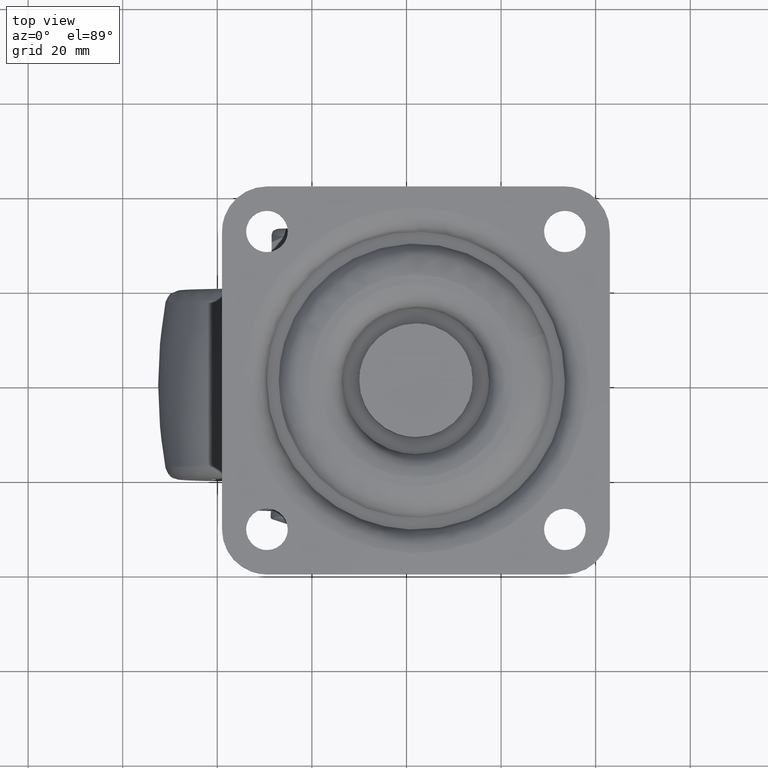
[diagram: clean part render]
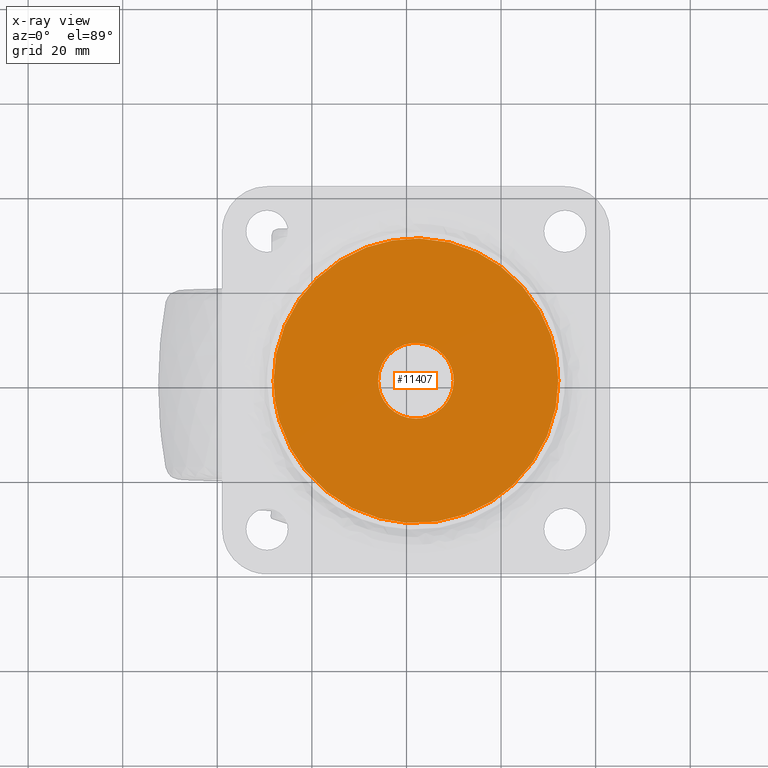
[diagram: x-ray — body ghosted, one internal face saturated and labeled with its STEP entity id]
A machine part, top view, then the same camera in x-ray: the body is ghosted and one INTERNAL B-rep face — a face not visible from any outside direction — is saturated and labeled: STEP entity #11407.
In plain terms, the highlighted face is a freeform B-spline surface patch.
Its self-contained STEP definition (entity closure, byte-faithful):
#10280=CARTESIAN_POINT('',(27.706003327018760,-5.607273950613976,50.500000000000000));
#10281=VERTEX_POINT('',#10280);
#10287=CARTESIAN_POINT('',(21.999998781109721,-7.999999999999908,50.500000000000000));
#10288=VERTEX_POINT('',#10287);
#10289=CARTESIAN_POINT('',(27.706003327018760,-5.607273950613976,50.500000000000000));
#10290=CARTESIAN_POINT('',(27.172767029776910,-6.150311056962093,50.499999999999957));
#10291=CARTESIAN_POINT('',(26.162422916047930,-6.920071128210032,50.500000000000000));
#10292=CARTESIAN_POINT('',(24.794264936340809,-7.523829900100319,50.500000000000128));
#10293=CARTESIAN_POINT('',(23.488929144175462,-7.898034644770791,50.499999999999851));
#10294=CARTESIAN_POINT('',(22.628703732143961,-8.000162117860397,50.499999999999979));
#10295=CARTESIAN_POINT('',(21.999998781109721,-7.999999999999908,50.500000000000000));
#10296=B_SPLINE_CURVE_WITH_KNOTS('',3,(#10289,#10290,#10291,#10292,#10293,#10294,#10295),.UNSPECIFIED.,.F.,.U.,(4,1,1,1,4),(0.000000039750932,2.283136854030599,3.772101604637890,4.466976573525338,6.353040258444593),.UNSPECIFIED.);
#10297=EDGE_CURVE('',#10281,#10288,#10296,.T.);
#10299=CARTESIAN_POINT('',(14.000000000000250,0.0,50.500000000000000));
#10300=VERTEX_POINT('',#10299);
#10301=CARTESIAN_POINT('',(21.999998781109721,-7.999999999999908,50.500000000000000));
#10302=CARTESIAN_POINT('',(21.149084754114892,-8.000512218788263,50.499999999999872));
#10303=CARTESIAN_POINT('',(19.774964267288709,-7.778552056415607,50.500000000000362));
#10304=CARTESIAN_POINT('',(18.151667443671101,-7.058816382926715,50.499999999999588));
#10305=CARTESIAN_POINT('',(16.814641658548329,-6.165653882715652,50.500000000000149));
#10306=CARTESIAN_POINT('',(15.655217210617019,-4.991895641402473,50.500000000000561));
#10307=CARTESIAN_POINT('',(14.800912543950551,-3.585917293800420,50.499999999998550));
#10308=CARTESIAN_POINT('',(14.174992431731040,-1.963302074627390,50.500000000002082));
#10309=CARTESIAN_POINT('',(13.999604038723721,-0.785451521738970,50.499999999998508));
#10310=CARTESIAN_POINT('',(14.000000000000250,0.0,50.500000000000000));
#10311=B_SPLINE_CURVE_WITH_KNOTS('',3,(#10301,#10302,#10303,#10304,#10305,#10306,#10307,#10308,#10309,#10310),.UNSPECIFIED.,.F.,.U.,(4,1,1,1,1,1,1,4),(0.000000140634823,2.552549652254344,4.123367077367458,5.301505706196092,7.363150717443729,9.032131318398214,10.210252339420419,12.566448776016021),.UNSPECIFIED.);
#10312=EDGE_CURVE('',#10288,#10300,#10311,.T.);
#10314=CARTESIAN_POINT('',(16.293996672981709,5.607273950614005,50.500000000000000));
#10315=VERTEX_POINT('',#10314);
#10316=CARTESIAN_POINT('',(14.000000000000250,0.0,50.500000000000000));
#10317=CARTESIAN_POINT('',(13.999904847595801,0.614865604587066,50.500000000000043));
#10318=CARTESIAN_POINT('',(14.153570745591100,1.941679641626583,50.499999999999922));
#10319=CARTESIAN_POINT('',(14.897625158423891,3.894343483369877,50.500000000000007));
#10320=CARTESIAN_POINT('',(15.772112090739499,5.076545699875956,50.499999999999922));
#10321=CARTESIAN_POINT('',(16.293996672981709,5.607273950614005,50.500000000000000));
#10322=B_SPLINE_CURVE_WITH_KNOTS('',3,(#10316,#10317,#10318,#10319,#10320,#10321),.UNSPECIFIED.,.F.,.U.,(4,1,1,4),(0.000000035588658,1.844610733675491,3.980453788138128,6.213410213284979),.UNSPECIFIED.);
#10323=EDGE_CURVE('',#10300,#10315,#10322,.T.);
#10353=CARTESIAN_POINT('',(22.000001218890620,7.999999999999907,50.500000000000000));
#10354=VERTEX_POINT('',#10353);
#10355=CARTESIAN_POINT('',(16.293996672981709,5.607273950614005,50.500000000000000));
#10356=CARTESIAN_POINT('',(16.827224800704300,6.150330961448214,50.500000000000000));
#10357=CARTESIAN_POINT('',(17.784412408530219,6.879523651033952,50.500000000000078));
#10358=CARTESIAN_POINT('',(19.173716214397359,7.513332914576061,50.499999999999957));
#10359=CARTESIAN_POINT('',(20.477972317015791,7.896029123521968,50.500000000000099));
#10360=CARTESIAN_POINT('',(21.404394789636520,8.000115564390042,50.499999999999872));
#10361=CARTESIAN_POINT('',(22.000001218890620,7.999999999999907,50.500000000000000));
#10362=B_SPLINE_CURVE_WITH_KNOTS('',3,(#10355,#10356,#10357,#10358,#10359,#10360,#10361),.UNSPECIFIED.,.F.,.U.,(4,1,1,1,4),(0.000000039751521,2.283136854030574,3.573576014349015,4.566246936286081,6.353040258444446),.UNSPECIFIED.);
#10363=EDGE_CURVE('',#10315,#10354,#10362,.T.);
#10365=CARTESIAN_POINT('',(30.000000000000249,0.0,50.500000000000000));
#10366=VERTEX_POINT('',#10365);
#10367=CARTESIAN_POINT('',(22.000001218890620,7.999999999999907,50.500000000000000));
#10368=CARTESIAN_POINT('',(22.621780092009779,8.000125262311537,50.500000000000099));
#10369=CARTESIAN_POINT('',(23.603459586018140,7.884953040402021,50.499999999999808));
#10370=CARTESIAN_POINT('',(25.044569667876861,7.438102306122747,50.500000000000249));
#10371=CARTESIAN_POINT('',(26.278223203219859,6.817194403158893,50.499999999999787));
#10372=CARTESIAN_POINT('',(27.345479758469001,5.994709914385376,50.500000000000341));
#10373=CARTESIAN_POINT('',(28.204549750671902,5.092364238622086,50.499999999999837));
#10374=CARTESIAN_POINT('',(28.891004512490301,4.130326058486411,50.500000000000092));
#10375=CARTESIAN_POINT('',(29.430453668036009,3.041988550030128,50.500000000000092));
#10376=CARTESIAN_POINT('',(29.874770691376060,1.668890967898380,50.499999999999773));
#10377=CARTESIAN_POINT('',(30.000176599511558,0.654511423056321,50.500000000000533));
#10378=CARTESIAN_POINT('',(30.000000000000249,0.0,50.500000000000000));
#10379=B_SPLINE_CURVE_WITH_KNOTS('',3,(#10367,#10368,#10369,#10370,#10371,#10372,#10373,#10374,#10375,#10376,#10377,#10378),.UNSPECIFIED.,.F.,.U.,(4,1,1,1,1,1,1,1,1,4),(0.000000140635976,1.865309576787295,2.945258541999941,4.516078823258411,5.988732285011616,6.970433134929015,8.246710034753781,9.523013242990256,10.602963198756781,12.566448776016200),.UNSPECIFIED.);
#10380=EDGE_CURVE('',#10354,#10366,#10379,.T.);
#10382=CARTESIAN_POINT('',(30.000000000000249,0.0,50.500000000000000));
#10383=CARTESIAN_POINT('',(30.000066239086919,-0.517785308072834,50.500000000000050));
#10384=CARTESIAN_POINT('',(29.908560468737811,-1.456243954199903,50.499999999999922));
#10385=CARTESIAN_POINT('',(29.575883396507528,-2.644082903370186,50.500000000000050));
#10386=CARTESIAN_POINT('',(28.960841674839529,-4.073040741567403,50.499999999999851));
#10387=CARTESIAN_POINT('',(28.296143272504359,-5.007426128567686,50.500000000000007));
#10388=CARTESIAN_POINT('',(27.706003327018760,-5.607273950613976,50.500000000000000));
#10389=B_SPLINE_CURVE_WITH_KNOTS('',3,(#10382,#10383,#10384,#10385,#10386,#10387,#10388),.UNSPECIFIED.,.F.,.U.,(4,1,1,1,4),(0.000000035589106,1.553352580022628,2.815463676973139,3.689197317608940,6.213410213284972),.UNSPECIFIED.);
#10390=EDGE_CURVE('',#10366,#10281,#10389,.T.);
#11248=CARTESIAN_POINT('',(-7.567846173319574,5.640368315292339,50.500000000000000));
#11249=VERTEX_POINT('',#11248);
#11262=CARTESIAN_POINT('',(-8.101017955562348,0.0,50.500000000000000));
#11263=VERTEX_POINT('',#11262);
#11264=CARTESIAN_POINT('',(-8.101017955562348,0.0,50.500000000000000));
#11265=CARTESIAN_POINT('',(-8.101161785134202,1.891314846883738,50.500000000000227));
#11266=CARTESIAN_POINT('',(-7.922360966601395,3.782578392223576,50.499999999999872));
#11267=CARTESIAN_POINT('',(-7.567846173319574,5.640368315292339,50.500000000000000));
#11268=B_SPLINE_CURVE_WITH_KNOTS('',3,(#11264,#11265,#11266,#11267),.UNSPECIFIED.,.F.,.U.,(4,4),(1.061912E-009,5.673916415643153),.UNSPECIFIED.);
#11269=EDGE_CURVE('',#11263,#11249,#11268,.T.);
#11271=CARTESIAN_POINT('',(51.567846173319580,-5.640368315292345,50.500000000000000));
#11272=VERTEX_POINT('',#11271);
#11273=CARTESIAN_POINT('',(51.567846173319580,-5.640368315292345,50.500000000000000));
#11274=CARTESIAN_POINT('',(51.264340265850308,-7.232083872043382,50.500000000000107));
#11275=CARTESIAN_POINT('',(50.461034043552907,-10.142401275747600,50.499999999999780));
#11276=CARTESIAN_POINT('',(48.855421306603773,-13.745550897589180,50.500000000000291));
#11277=CARTESIAN_POINT('',(47.054937434134047,-16.786473854660560,50.499999999999780));
#11278=CARTESIAN_POINT('',(44.627296093789013,-20.038871327901731,50.500000000000242));
#11279=CARTESIAN_POINT('',(41.550259423452353,-23.045233280467819,50.499999999999893));
#11280=CARTESIAN_POINT('',(37.542730788798970,-25.912073193620770,50.499999999999957));
#11281=CARTESIAN_POINT('',(33.658449062848391,-27.890010275354239,50.500000000000192));
#11282=CARTESIAN_POINT('',(29.739692284757869,-29.155391723542230,50.499999999999993));
#11283=CARTESIAN_POINT('',(26.276125948788302,-29.857169317997570,50.500000000000107));
#11284=CARTESIAN_POINT('',(22.522280891094539,-30.197208235940820,50.500000000000071));
#11285=CARTESIAN_POINT('',(18.348334293990611,-29.984226993945210,50.500000000000028));
#11286=CARTESIAN_POINT('',(14.593107026793129,-29.241725001596851,50.500000000000270));
#11287=CARTESIAN_POINT('',(11.335516951170289,-28.206627172501360,50.499999999999730));
#11288=CARTESIAN_POINT('',(7.881997026340875,-26.699710697967159,50.500000000001357));
#11289=CARTESIAN_POINT('',(4.273959575324841,-24.473746964112500,50.499999999998437));
#11290=CARTESIAN_POINT('',(0.741308213014469,-21.464047401178341,50.499999999997939));
#11291=CARTESIAN_POINT('',(-1.932110621345601,-18.404072863362359,50.500000000001108));
#11292=CARTESIAN_POINT('',(-4.173892412045317,-15.022529303697580,50.499999999999908));
#11293=CARTESIAN_POINT('',(-5.697715436544553,-11.957826451321511,50.499999999997769));
#11294=CARTESIAN_POINT('',(-7.014365468725837,-8.306394181550468,50.500000000006231));
#11295=CARTESIAN_POINT('',(-7.883693988993704,-4.456108980407898,50.499999999986812));
#11296=CARTESIAN_POINT('',(-8.101072807333983,-1.446794160921646,50.500000000008683));
#11297=CARTESIAN_POINT('',(-8.101017955562348,0.0,50.500000000000000));
#11298=B_SPLINE_CURVE_WITH_KNOTS('',3,(#11273,#11274,#11275,#11276,#11277,#11278,#11279,#11280,#11281,#11282,#11283,#11284,#11285,#11286,#11287,#11288,#11289,#11290,#11291,#11292,#11293,#11294,#11295,#11296,#11297),.UNSPECIFIED.,.F.,.U.,(4,1,1,1,1,1,1,1,1,1,1,1,1,1,1,1,1,1,1,1,1,1,4),(0.000000197756719,4.861160970822098,9.028010929652567,11.805832268748730,15.451813557338980,21.181142809710540,24.653465283334580,30.209209683821040,34.202373058096263,36.980259803004927,40.799783464676260,45.487294909751697,49.480463030072293,52.258348774516030,55.730659835779278,60.765563932373702,64.932347306958917,69.619994725684109,72.918701836477169,77.085502932147762,79.863388463656236,84.550964400915262,88.891351876623659),.UNSPECIFIED.);
#11299=EDGE_CURVE('',#11272,#11263,#11298,.T.);
#11347=CARTESIAN_POINT('',(52.101017955562362,0.0,50.500000000000000));
#11348=VERTEX_POINT('',#11347);
#11349=CARTESIAN_POINT('',(52.101017955562362,0.0,50.500000000000000));
#11350=CARTESIAN_POINT('',(52.101183892303780,-1.891315511613602,50.500000000000242));
#11351=CARTESIAN_POINT('',(51.922331422222641,-3.782576702006733,50.499999999999979));
#11352=CARTESIAN_POINT('',(51.567846173319580,-5.640368315292345,50.500000000000000));
#11353=B_SPLINE_CURVE_WITH_KNOTS('',3,(#11349,#11350,#11351,#11352),.UNSPECIFIED.,.F.,.U.,(4,4),(1.061907E-009,5.673916415643161),.UNSPECIFIED.);
#11354=EDGE_CURVE('',#11348,#11272,#11353,.T.);
#11356=CARTESIAN_POINT('',(-7.567846173319574,5.640368315292339,50.500000000000000));
#11357=CARTESIAN_POINT('',(-7.253505283729441,7.288951596220812,50.500000000000107));
#11358=CARTESIAN_POINT('',(-6.457191032418888,10.141659217393510,50.499999999999957));
#11359=CARTESIAN_POINT('',(-4.498246805922964,14.538033827633789,50.500000000000043));
#11360=CARTESIAN_POINT('',(-2.001571654801984,18.391242139823792,50.499999999999780));
#11361=CARTESIAN_POINT('',(1.243394723872967,21.949787408239452,50.500000000000242));
#11362=CARTESIAN_POINT('',(4.390977233366868,24.518083400086649,50.499999999999510));
#11363=CARTESIAN_POINT('',(7.445803078736571,26.410421873404459,50.500000000000057));
#11364=CARTESIAN_POINT('',(10.731423288294939,28.000896477957578,50.499999999999943));
#11365=CARTESIAN_POINT('',(14.748514628618560,29.349720925041609,50.499999999999957));
#11366=CARTESIAN_POINT('',(18.874882607889141,30.025785167713039,50.499999999999922));
#11367=CARTESIAN_POINT('',(22.812233040084589,30.154278835427942,50.499999999999922));
#11368=CARTESIAN_POINT('',(26.396690831233119,29.867573844528689,50.499999999999950));
#11369=CARTESIAN_POINT('',(29.911737060885599,29.109206477013402,50.499999999999737));
#11370=CARTESIAN_POINT('',(33.370562707980497,27.943921260169748,50.500000000001180));
#11371=CARTESIAN_POINT('',(36.729153472215188,26.361530413709161,50.499999999997073));
#11372=CARTESIAN_POINT('',(40.468610377435027,23.918339145063531,50.500000000002402));
#11373=CARTESIAN_POINT('',(43.839341695596872,20.892217825966359,50.499999999996660));
#11374=CARTESIAN_POINT('',(46.917191069328091,17.113047211167121,50.500000000001343));
#11375=CARTESIAN_POINT('',(49.100315216627948,13.342856560843940,50.499999999997932));
#11376=CARTESIAN_POINT('',(50.844855513813513,8.983492819192293,50.500000000004889));
#11377=CARTESIAN_POINT('',(51.867074178979927,4.687633224984745,50.499999999990152));
#11378=CARTESIAN_POINT('',(52.101050219860163,1.446787773870108,50.500000000005983));
#11379=CARTESIAN_POINT('',(52.101017955562362,0.0,50.500000000000000));
#11380=B_SPLINE_CURVE_WITH_KNOTS('',3,(#11356,#11357,#11358,#11359,#11360,#11361,#11362,#11363,#11364,#11365,#11366,#11367,#11368,#11369,#11370,#11371,#11372,#11373,#11374,#11375,#11376,#11377,#11378,#11379),.UNSPECIFIED.,.F.,.U.,(4,1,1,1,1,1,1,1,1,1,1,1,1,1,1,1,1,1,1,1,1,4),(0.000000196953181,5.034834124616779,8.854347769395417,14.410110050770671,18.750512273587230,23.264539459419741,26.563245215919238,29.514719826757069,34.202373057605733,39.237276545701853,42.015101651918009,46.008132309787896,50.001309782035598,52.779198115350013,56.946007008706893,61.112778925022511,66.147667743142762,70.488070975004320,75.696588565876269,79.168901189498456,84.550964400878684,88.891351876624469),.UNSPECIFIED.);
#11381=EDGE_CURVE('',#11249,#11348,#11380,.T.);
#11388=CARTESIAN_POINT('',(55.108109532639801,-33.107816003755303,50.500000000000000));
#11389=CARTESIAN_POINT('',(-11.108111147384230,-33.107816003755303,50.500000000000000));
#11390=CARTESIAN_POINT('',(55.108109532639801,33.107852014962241,50.500000000000000));
#11391=CARTESIAN_POINT('',(-11.108111147384230,33.107852014962241,50.500000000000000));
#11392=B_SPLINE_SURFACE_WITH_KNOTS('',1,1,((#11388,#11390),(#11389,#11391)),.UNSPECIFIED.,.F.,.F.,.U.,(2,2),(2,2),(0.0,66.216220680024037),(0.0,66.215668018717537),.UNSPECIFIED.);
#11393=ORIENTED_EDGE('',*,*,#11269,.T.);
#11394=ORIENTED_EDGE('',*,*,#11381,.T.);
#11395=ORIENTED_EDGE('',*,*,#11354,.T.);
#11396=ORIENTED_EDGE('',*,*,#11299,.T.);
#11397=EDGE_LOOP('',(#11393,#11394,#11395,#11396));
#11398=FACE_OUTER_BOUND('',#11397,.T.);
#11399=ORIENTED_EDGE('',*,*,#10312,.F.);
#11400=ORIENTED_EDGE('',*,*,#10297,.F.);
#11401=ORIENTED_EDGE('',*,*,#10390,.F.);
#11402=ORIENTED_EDGE('',*,*,#10380,.F.);
#11403=ORIENTED_EDGE('',*,*,#10363,.F.);
#11404=ORIENTED_EDGE('',*,*,#10323,.F.);
#11405=EDGE_LOOP('',(#11399,#11400,#11401,#11402,#11403,#11404));
#11406=FACE_BOUND('',#11405,.T.);
#11407=ADVANCED_FACE('',(#11398,#11406),#11392,.T.);